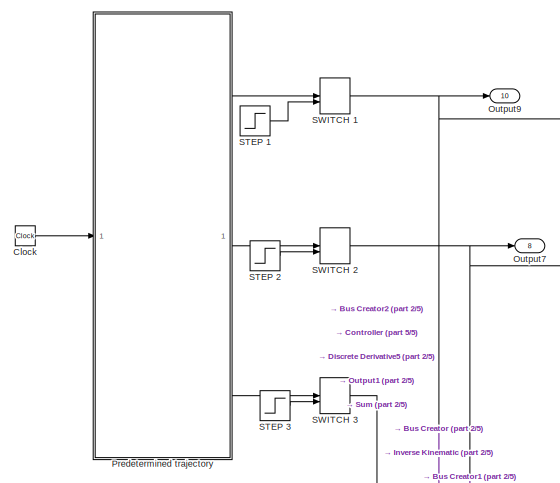
[diagram: root canvas - part 1/5, top center region]
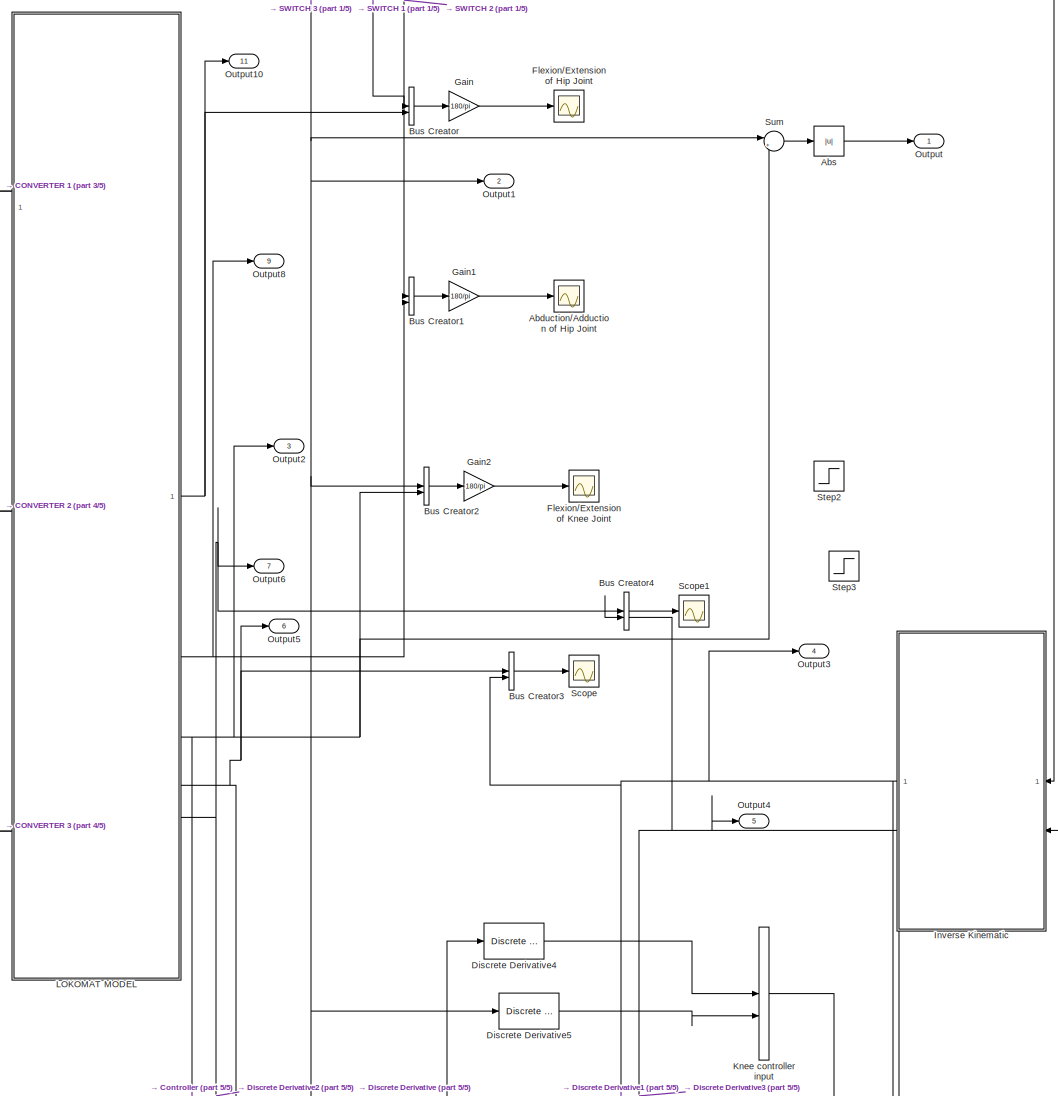
[diagram: root canvas - part 2/5, middle right region]
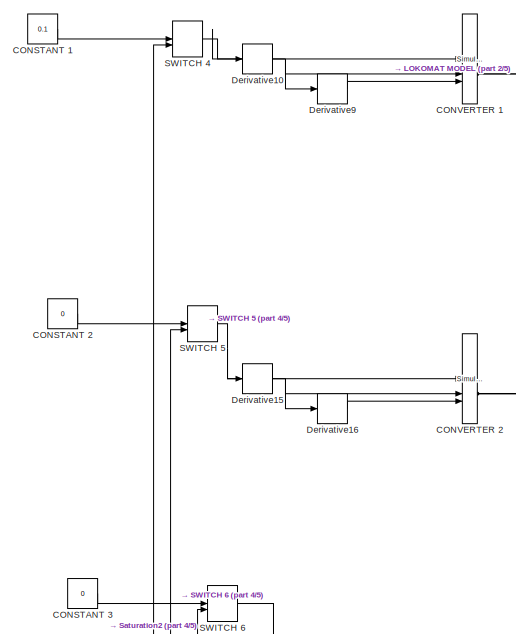
[diagram: root canvas - part 3/5, middle left region]
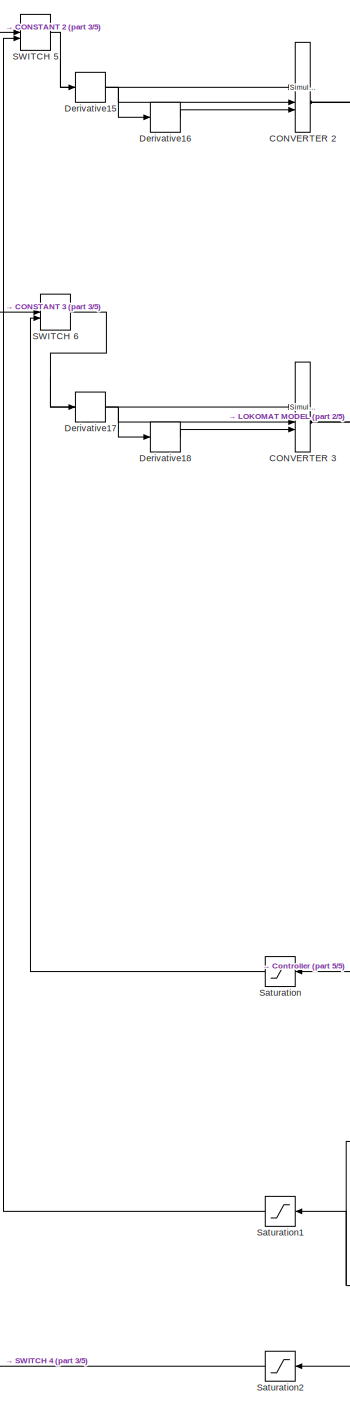
[diagram: root canvas - part 4/5, bottom left region]
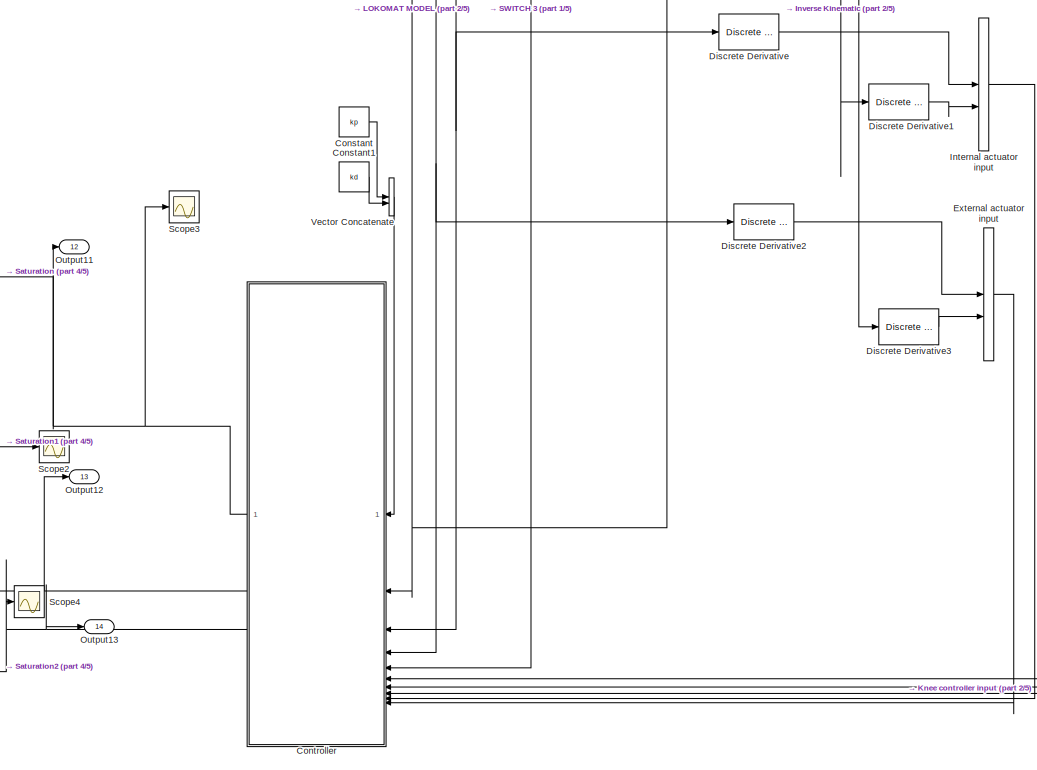
[diagram: root canvas - part 5/5, bottom center region]
MODEL slx_f1c652d692b9
KIND model
CONFIG AbsTol = auto
CONFIG EnableMultiTasking = off
CONFIG FixedStep = 0.001
CONFIG MaxStep = auto
CONFIG MinStep = auto
CONFIG RelTol = 1e-3
CONFIG SampleTimeConstraint = Unconstrained
CONFIG SolverName = FixedStepAuto
CONFIG StartTime = 0.0
CONFIG StopTime = 4
BLOCK [Scope] Abduction//Adduction of Hip Joint
  Floating = off
  NumInputPorts = 1
  ScopeSpecificationString = Simulink.scopes.TimeScopeBlockCfg('CurrentConfiguration', extmgr.ConfigurationSet(extmgr.Configuration('Core','General UI',true),extmgr.Configuration('Core','Source UI',true),extmgr.Configuration('Sources','WiredSimulink',true,'DataLoggingVariableName','ScopeData1'),extmgr.Configuration('Visuals','Time Domain',true,'SerializedDisplays',{struct('MinYLimReal','-5.44733','MaxYLimReal','7.37252','YLab...<+1542ch>
BLOCK [Abs] Abs
  SaturateOnIntegerOverflow = off
BLOCK [BusCreator] Bus Creator
  DisplayOption = bar
  InheritFromInputs = on
  Inputs = 2
BLOCK [BusCreator] Bus Creator1
  DisplayOption = bar
  InheritFromInputs = on
  Inputs = 2
BLOCK [BusCreator] Bus Creator2
  DisplayOption = bar
  InheritFromInputs = on
  Inputs = 2
BLOCK [BusCreator] Bus Creator3
  DisplayOption = bar
  InheritFromInputs = on
  Inputs = 2
BLOCK [BusCreator] Bus Creator4
  DisplayOption = bar
  InheritFromInputs = on
  Inputs = 2
BLOCK [Constant] CONSTANT 1
  Value = 0.1
BLOCK [Constant] CONSTANT 2
  Value = 0
BLOCK [Constant] CONSTANT 3
  Value = 0
BLOCK [Reference] CONVERTER 1  REF=nesl_utility/Simulink-PS
Converter
  NameLocation = top
  SourceBlock = nesl_utility/Simulink-PS\nConverter
  SourceType = Simulink-PS\nConverter
BLOCK [Reference] CONVERTER 2   REF=nesl_utility/Simulink-PS
Converter
  NameLocation = top
  SourceBlock = nesl_utility/Simulink-PS\nConverter
  SourceType = Simulink-PS\nConverter
BLOCK [Reference] CONVERTER 3  REF=nesl_utility/Simulink-PS
Converter
  NameLocation = top
  SourceBlock = nesl_utility/Simulink-PS\nConverter
  SourceType = Simulink-PS\nConverter
BLOCK [Clock] Clock
BLOCK [Constant] Constant
  Value = kp
BLOCK [Constant] Constant1
  Value = kd
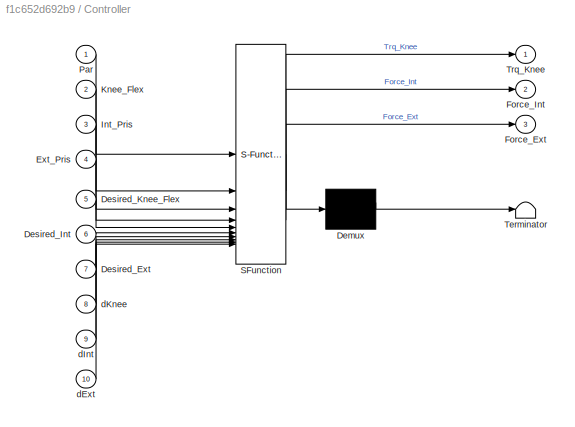
BLOCK [SubSystem] Controller 
  ErrorFcn = Stateflow.Translate.translate
  PermitHierarchicalResolution = ExplicitOnly
  SFBlockType = MATLAB Function
  TreatAsAtomicUnit = on
BLOCK [Demux] Controller / Demux 
  Outputs = 1
BLOCK [S-Function] Controller / SFunction 
  EnableBusSupport = on
  FunctionName = sf_sfun
  PortCounts = [10 4]
  SFcnIsStateOwnerBlock = off
  SFunctionDeploymentMode = off
  Tag = Stateflow S-Function 2
BLOCK [Terminator] Controller / Terminator 
BLOCK [Inport] Controller /Desired_Ext
  Port = 7
BLOCK [Inport] Controller /Desired_Int
  Port = 6
BLOCK [Inport] Controller /Desired_Knee_Flex
  Port = 5
BLOCK [Inport] Controller /Ext_Pris
  Port = 4
BLOCK [Outport] Controller /Force_Ext
  Port = 3
BLOCK [Outport] Controller /Force_Int
  Port = 2
BLOCK [Inport] Controller /Int_Pris
  Port = 3
BLOCK [Inport] Controller /Knee_Flex
  Port = 2
BLOCK [Inport] Controller /Par
BLOCK [Outport] Controller /Trq_Knee
BLOCK [Inport] Controller /dExt
  Port = 10
BLOCK [Inport] Controller /dInt
  Port = 9
BLOCK [Inport] Controller /dKnee
  Port = 8
BLOCK [Derivative] Derivative10
  NameLocation = top
BLOCK [Derivative] Derivative15
  NameLocation = top
BLOCK [Derivative] Derivative16
  NameLocation = top
BLOCK [Derivative] Derivative17
  NameLocation = top
BLOCK [Derivative] Derivative18
  NameLocation = top
BLOCK [Derivative] Derivative9
  NameLocation = top
BLOCK [Reference] Discrete Derivative  REF=simulink/Quick Insert/Discrete/Discrete Derivative
  SourceBlock = simulink/Quick Insert/Discrete/Discrete Derivative
  SourceType = Discrete Derivative
BLOCK [Reference] Discrete Derivative1  REF=simulink/Quick Insert/Discrete/Discrete Derivative
  SourceBlock = simulink/Quick Insert/Discrete/Discrete Derivative
  SourceType = Discrete Derivative
BLOCK [Reference] Discrete Derivative2  REF=simulink/Quick Insert/Discrete/Discrete Derivative
  SourceBlock = simulink/Quick Insert/Discrete/Discrete Derivative
  SourceType = Discrete Derivative
BLOCK [Reference] Discrete Derivative3  REF=simulink/Quick Insert/Discrete/Discrete Derivative
  SourceBlock = simulink/Quick Insert/Discrete/Discrete Derivative
  SourceType = Discrete Derivative
BLOCK [Reference] Discrete Derivative4  REF=simulink/Quick Insert/Discrete/Discrete Derivative
  SourceBlock = simulink/Quick Insert/Discrete/Discrete Derivative
  SourceType = Discrete Derivative
BLOCK [Reference] Discrete Derivative5  REF=simulink/Quick Insert/Discrete/Discrete Derivative
  SourceBlock = simulink/Quick Insert/Discrete/Discrete Derivative
  SourceType = Discrete Derivative
BLOCK [Concatenate] External actuator input
  NameLocation = right
BLOCK [Scope] Flexion//Extension of Hip Joint
  Floating = off
  NumInputPorts = 1
  ScopeSpecificationString = Simulink.scopes.TimeScopeBlockCfg('CurrentConfiguration', extmgr.ConfigurationSet(extmgr.Configuration('Core','General UI',true),extmgr.Configuration('Core','Source UI',true),extmgr.Configuration('Sources','WiredSimulink',true),extmgr.Configuration('Visuals','Time Domain',true,'SerializedDisplays',{struct('MinYLimReal','-23.22608','MaxYLimReal','35.95407','YLabelReal','','MinYLimMag','0.00000','Ma...<+1536ch>
BLOCK [Scope] Flexion//Extension of Knee Joint
  Floating = off
  NumInputPorts = 1
  ScopeSpecificationString = Simulink.scopes.TimeScopeBlockCfg('CurrentConfiguration', extmgr.ConfigurationSet(extmgr.Configuration('Core','General UI',true),extmgr.Configuration('Core','Source UI',true),extmgr.Configuration('Sources','WiredSimulink',true,'DataLoggingVariableName','ScopeData1'),extmgr.Configuration('Visuals','Time Domain',true,'SerializedDisplays',{struct('MinYLimReal','-66.03416','MaxYLimReal','6.33606','YLa...<+1546ch>
BLOCK [Gain] Gain
  Gain = 180/pi
BLOCK [Gain] Gain1
  Gain = 180/pi
BLOCK [Gain] Gain2
  Gain = 180/pi
BLOCK [Concatenate] Internal actuator input
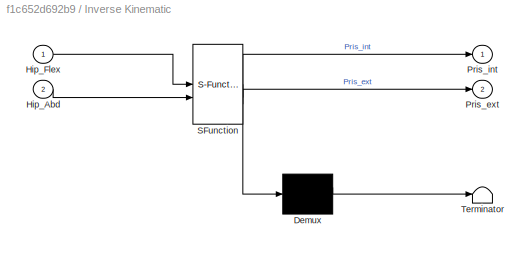
BLOCK [SubSystem] Inverse Kinematic 
  ErrorFcn = Stateflow.Translate.translate
  PermitHierarchicalResolution = ExplicitOnly
  SFBlockType = MATLAB Function
  TreatAsAtomicUnit = on
BLOCK [Demux] Inverse Kinematic / Demux 
  Outputs = 1
BLOCK [S-Function] Inverse Kinematic / SFunction 
  EnableBusSupport = on
  FunctionName = sf_sfun
  PortCounts = [2 3]
  SFcnIsStateOwnerBlock = off
  SFunctionDeploymentMode = off
  Tag = Stateflow S-Function 4
BLOCK [Terminator] Inverse Kinematic / Terminator 
BLOCK [Inport] Inverse Kinematic /Hip_Abd
  Port = 2
BLOCK [Inport] Inverse Kinematic /Hip_Flex
BLOCK [Outport] Inverse Kinematic /Pris_ext
  Port = 2
BLOCK [Outport] Inverse Kinematic /Pris_int
BLOCK [Concatenate] Knee controller input
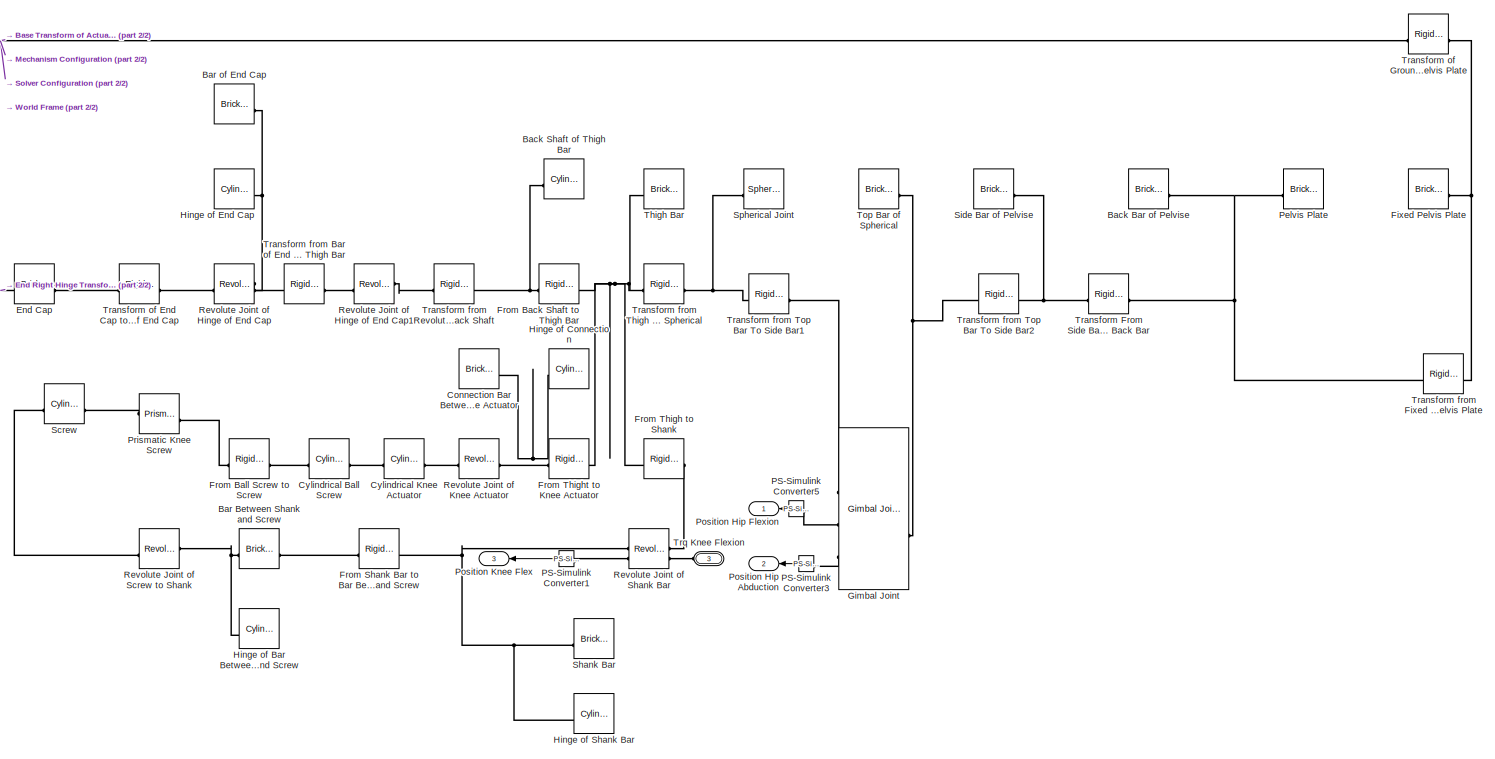
[diagram: LOKOMAT MODEL - part 1/2, right side, full height]
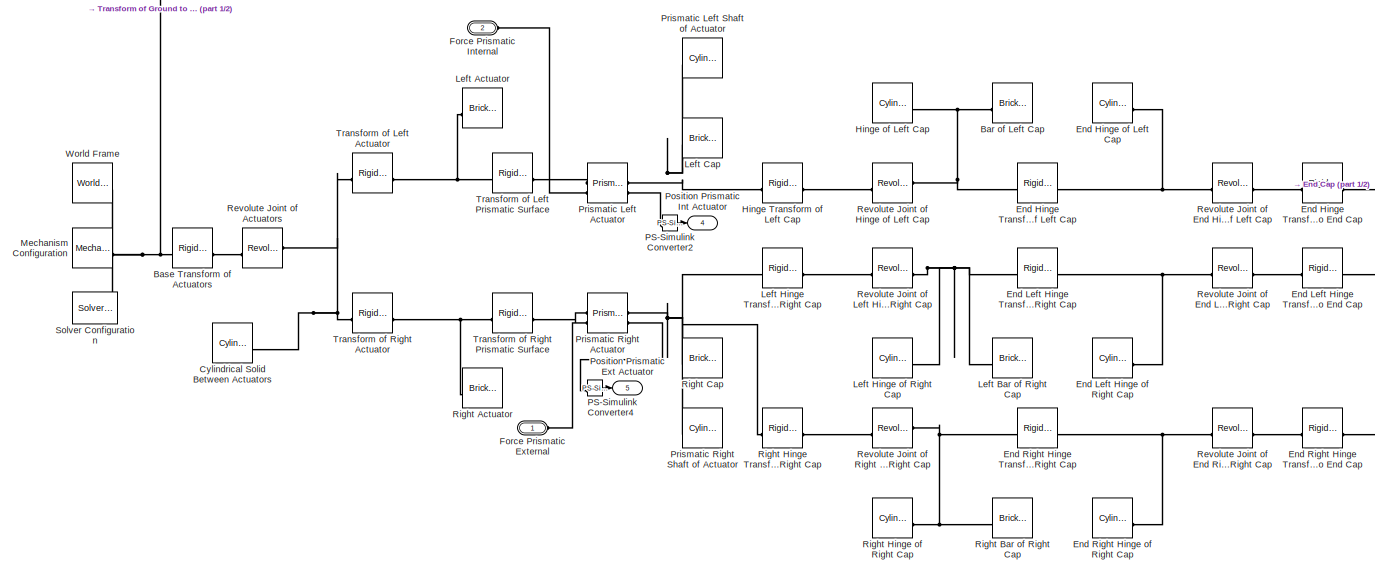
[diagram: LOKOMAT MODEL - part 2/2, middle left region]
BLOCK [SubSystem] LOKOMAT MODEL
BLOCK [Reference] LOKOMAT MODEL/ Fixed Pelvis Plate  REF=sm_lib/Body Elements/Brick Solid
  SourceBlock = sm_lib/Body Elements/Brick Solid
  SourceType = Brick Solid
BLOCK [Reference] LOKOMAT MODEL/Back Bar of Pelvise  REF=sm_lib/Body Elements/Brick Solid
  SourceBlock = sm_lib/Body Elements/Brick Solid
  SourceType = Brick Solid
BLOCK [Reference] LOKOMAT MODEL/Back Shaft of Thigh Bar  REF=sm_lib/Body Elements/Cylindrical Solid
  SourceBlock = sm_lib/Body Elements/Cylindrical Solid
  SourceType = Cylindrical Solid
BLOCK [Reference] LOKOMAT MODEL/Bar Between Shank and Screw  REF=sm_lib/Body Elements/Brick Solid
  SourceBlock = sm_lib/Body Elements/Brick Solid
  SourceType = Brick Solid
BLOCK [Reference] LOKOMAT MODEL/Bar of End Cap  REF=sm_lib/Body Elements/Brick Solid
  SourceBlock = sm_lib/Body Elements/Brick Solid
  SourceType = Brick Solid
BLOCK [Reference] LOKOMAT MODEL/Bar of Left Cap  REF=sm_lib/Body Elements/Brick Solid
  SourceBlock = sm_lib/Body Elements/Brick Solid
  SourceType = Brick Solid
BLOCK [Reference] LOKOMAT MODEL/Base Transform of Actuators  REF=sm_lib/Frames and
Transforms/Rigid
Transform
  SourceBlock = sm_lib/Frames and\nTransforms/Rigid\nTransform
  SourceType = Rigid\nTransform
BLOCK [Reference] LOKOMAT MODEL/Connection Bar Between Thigh and Knee Actuator  REF=sm_lib/Body Elements/Brick Solid
  SourceBlock = sm_lib/Body Elements/Brick Solid
  SourceType = Brick Solid
BLOCK [Reference] LOKOMAT MODEL/Cylindrical Ball Screw  REF=sm_lib/Body Elements/Cylindrical Solid
  SourceBlock = sm_lib/Body Elements/Cylindrical Solid
  SourceType = Cylindrical Solid
BLOCK [Reference] LOKOMAT MODEL/Cylindrical Knee Actuator  REF=sm_lib/Body Elements/Cylindrical Solid
  SourceBlock = sm_lib/Body Elements/Cylindrical Solid
  SourceType = Cylindrical Solid
BLOCK [Reference] LOKOMAT MODEL/Cylindrical Solid Between Actuators  REF=sm_lib/Body Elements/Cylindrical Solid
  SourceBlock = sm_lib/Body Elements/Cylindrical Solid
  SourceType = Cylindrical Solid
BLOCK [Reference] LOKOMAT MODEL/End Cap  REF=sm_lib/Body Elements/Brick Solid
  SourceBlock = sm_lib/Body Elements/Brick Solid
  SourceType = Brick Solid
BLOCK [Reference] LOKOMAT MODEL/End Hinge Transform of Left Cap   REF=sm_lib/Frames and
Transforms/Rigid
Transform
  SourceBlock = sm_lib/Frames and\nTransforms/Rigid\nTransform
  SourceType = Rigid\nTransform
BLOCK [Reference] LOKOMAT MODEL/End Hinge Transform of Left Cap to End Cap  REF=sm_lib/Frames and
Transforms/Rigid
Transform
  SourceBlock = sm_lib/Frames and\nTransforms/Rigid\nTransform
  SourceType = Rigid\nTransform
BLOCK [Reference] LOKOMAT MODEL/End Hinge of Left Cap  REF=sm_lib/Body Elements/Cylindrical Solid
  SourceBlock = sm_lib/Body Elements/Cylindrical Solid
  SourceType = Cylindrical Solid
BLOCK [Reference] LOKOMAT MODEL/End Left Hinge Transform of Right Cap   REF=sm_lib/Frames and
Transforms/Rigid
Transform
  SourceBlock = sm_lib/Frames and\nTransforms/Rigid\nTransform
  SourceType = Rigid\nTransform
BLOCK [Reference] LOKOMAT MODEL/End Left Hinge Transform of Right Cap to End Cap  REF=sm_lib/Frames and
Transforms/Rigid
Transform
  SourceBlock = sm_lib/Frames and\nTransforms/Rigid\nTransform
  SourceType = Rigid\nTransform
BLOCK [Reference] LOKOMAT MODEL/End Left Hinge of Right Cap  REF=sm_lib/Body Elements/Cylindrical Solid
  SourceBlock = sm_lib/Body Elements/Cylindrical Solid
  SourceType = Cylindrical Solid
BLOCK [Reference] LOKOMAT MODEL/End Right Hinge Transform of Right Cap   REF=sm_lib/Frames and
Transforms/Rigid
Transform
  SourceBlock = sm_lib/Frames and\nTransforms/Rigid\nTransform
  SourceType = Rigid\nTransform
BLOCK [Reference] LOKOMAT MODEL/End Right Hinge Transform of Right Cap to End Cap  REF=sm_lib/Frames and
Transforms/Rigid
Transform
  SourceBlock = sm_lib/Frames and\nTransforms/Rigid\nTransform
  SourceType = Rigid\nTransform
BLOCK [Reference] LOKOMAT MODEL/End Right Hinge of Right Cap  REF=sm_lib/Body Elements/Cylindrical Solid
  SourceBlock = sm_lib/Body Elements/Cylindrical Solid
  SourceType = Cylindrical Solid
BLOCK [PMIOPort] LOKOMAT MODEL/Force Prismatic External
  Side = Left
BLOCK [PMIOPort] LOKOMAT MODEL/Force Prismatic Internal
  Port = 2
  Side = Left
BLOCK [Reference] LOKOMAT MODEL/From Back Shaft to Thigh Bar  REF=sm_lib/Frames and
Transforms/Rigid
Transform
  SourceBlock = sm_lib/Frames and\nTransforms/Rigid\nTransform
  SourceType = Rigid\nTransform
BLOCK [Reference] LOKOMAT MODEL/From Ball Screw to Screw  REF=sm_lib/Frames and
Transforms/Rigid
Transform
  SourceBlock = sm_lib/Frames and\nTransforms/Rigid\nTransform
  SourceType = Rigid\nTransform
BLOCK [Reference] LOKOMAT MODEL/From Shank Bar to Bar Between Shank and Screw  REF=sm_lib/Frames and
Transforms/Rigid
Transform
  SourceBlock = sm_lib/Frames and\nTransforms/Rigid\nTransform
  SourceType = Rigid\nTransform
BLOCK [Reference] LOKOMAT MODEL/From Thigh to Shank  REF=sm_lib/Frames and
Transforms/Rigid
Transform
  SourceBlock = sm_lib/Frames and\nTransforms/Rigid\nTransform
  SourceType = Rigid\nTransform
BLOCK [Reference] LOKOMAT MODEL/From Thight to Knee Actuator  REF=sm_lib/Frames and
Transforms/Rigid
Transform
  SourceBlock = sm_lib/Frames and\nTransforms/Rigid\nTransform
  SourceType = Rigid\nTransform
BLOCK [Reference] LOKOMAT MODEL/Gimbal Joint  REF=sm_lib/Joints/Gimbal Joint
  SourceBlock = sm_lib/Joints/Gimbal Joint
  SourceType = Gimbal Joint
BLOCK [Reference] LOKOMAT MODEL/Hinge Transform of Left Cap   REF=sm_lib/Frames and
Transforms/Rigid
Transform
  SourceBlock = sm_lib/Frames and\nTransforms/Rigid\nTransform
  SourceType = Rigid\nTransform
BLOCK [Reference] LOKOMAT MODEL/Hinge of Bar Between Shank and Screw   REF=sm_lib/Body Elements/Cylindrical Solid
  SourceBlock = sm_lib/Body Elements/Cylindrical Solid
  SourceType = Cylindrical Solid
BLOCK [Reference] LOKOMAT MODEL/Hinge of Connection  REF=sm_lib/Body Elements/Cylindrical Solid
  SourceBlock = sm_lib/Body Elements/Cylindrical Solid
  SourceType = Cylindrical Solid
BLOCK [Reference] LOKOMAT MODEL/Hinge of End Cap  REF=sm_lib/Body Elements/Cylindrical Solid
  SourceBlock = sm_lib/Body Elements/Cylindrical Solid
  SourceType = Cylindrical Solid
BLOCK [Reference] LOKOMAT MODEL/Hinge of Left Cap  REF=sm_lib/Body Elements/Cylindrical Solid
  SourceBlock = sm_lib/Body Elements/Cylindrical Solid
  SourceType = Cylindrical Solid
BLOCK [Reference] LOKOMAT MODEL/Hinge of Shank Bar  REF=sm_lib/Body Elements/Cylindrical Solid
  SourceBlock = sm_lib/Body Elements/Cylindrical Solid
  SourceType = Cylindrical Solid
BLOCK [Reference] LOKOMAT MODEL/Left Actuator  REF=sm_lib/Body Elements/Brick Solid
  SourceBlock = sm_lib/Body Elements/Brick Solid
  SourceType = Brick Solid
BLOCK [Reference] LOKOMAT MODEL/Left Bar of Right Cap  REF=sm_lib/Body Elements/Brick Solid
  SourceBlock = sm_lib/Body Elements/Brick Solid
  SourceType = Brick Solid
BLOCK [Reference] LOKOMAT MODEL/Left Cap  REF=sm_lib/Body Elements/Brick Solid
  SourceBlock = sm_lib/Body Elements/Brick Solid
  SourceType = Brick Solid
BLOCK [Reference] LOKOMAT MODEL/Left Hinge Transform of Right Cap   REF=sm_lib/Frames and
Transforms/Rigid
Transform
  SourceBlock = sm_lib/Frames and\nTransforms/Rigid\nTransform
  SourceType = Rigid\nTransform
BLOCK [Reference] LOKOMAT MODEL/Left Hinge of Right Cap  REF=sm_lib/Body Elements/Cylindrical Solid
  SourceBlock = sm_lib/Body Elements/Cylindrical Solid
  SourceType = Cylindrical Solid
BLOCK [Reference] LOKOMAT MODEL/Mechanism Configuration  REF=sm_lib/Utilities/Mechanism
Configuration
  SourceBlock = sm_lib/Utilities/Mechanism\nConfiguration
  SourceType = Mechanism\nConfiguration
BLOCK [Reference] LOKOMAT MODEL/PS-Simulink Converter1  REF=nesl_utility/PS-Simulink
Converter
  SourceBlock = nesl_utility/PS-Simulink\nConverter
  SourceType = PS-Simulink\nConverter
BLOCK [Reference] LOKOMAT MODEL/PS-Simulink Converter2  REF=nesl_utility/PS-Simulink
Converter
  SourceBlock = nesl_utility/PS-Simulink\nConverter
  SourceType = PS-Simulink\nConverter
BLOCK [Reference] LOKOMAT MODEL/PS-Simulink Converter3  REF=nesl_utility/PS-Simulink
Converter
  SourceBlock = nesl_utility/PS-Simulink\nConverter
  SourceType = PS-Simulink\nConverter
BLOCK [Reference] LOKOMAT MODEL/PS-Simulink Converter4  REF=nesl_utility/PS-Simulink
Converter
  SourceBlock = nesl_utility/PS-Simulink\nConverter
  SourceType = PS-Simulink\nConverter
BLOCK [Reference] LOKOMAT MODEL/PS-Simulink Converter5  REF=nesl_utility/PS-Simulink
Converter
  SourceBlock = nesl_utility/PS-Simulink\nConverter
  SourceType = PS-Simulink\nConverter
BLOCK [Reference] LOKOMAT MODEL/Pelvis Plate  REF=sm_lib/Body Elements/Brick Solid
  SourceBlock = sm_lib/Body Elements/Brick Solid
  SourceType = Brick Solid
BLOCK [Outport] LOKOMAT MODEL/Position Hip Abduction
  Port = 2
BLOCK [Outport] LOKOMAT MODEL/Position Hip Flexion
BLOCK [Outport] LOKOMAT MODEL/Position Knee Flex
  Port = 3
BLOCK [Outport] LOKOMAT MODEL/Position Prismatic Ext Actuator
  Port = 5
BLOCK [Outport] LOKOMAT MODEL/Position Prismatic Int Actuator
  Port = 4
BLOCK [Reference] LOKOMAT MODEL/Prismatic Knee Screw   REF=sm_lib/Joints/Prismatic
Joint
  NameLocation = top
  SourceBlock = sm_lib/Joints/Prismatic\nJoint
  SourceType = Prismatic\nJoint
BLOCK [Reference] LOKOMAT MODEL/Prismatic Left Actuator  REF=sm_lib/Joints/Prismatic
Joint
  NameLocation = top
  SourceBlock = sm_lib/Joints/Prismatic\nJoint
  SourceType = Prismatic\nJoint
BLOCK [Reference] LOKOMAT MODEL/Prismatic Left Shaft of Actuator  REF=sm_lib/Body Elements/Cylindrical Solid
  SourceBlock = sm_lib/Body Elements/Cylindrical Solid
  SourceType = Cylindrical Solid
BLOCK [Reference] LOKOMAT MODEL/Prismatic Right Actuator  REF=sm_lib/Joints/Prismatic
Joint
  NameLocation = top
  SourceBlock = sm_lib/Joints/Prismatic\nJoint
  SourceType = Prismatic\nJoint
BLOCK [Reference] LOKOMAT MODEL/Prismatic Right Shaft of Actuator  REF=sm_lib/Body Elements/Cylindrical Solid
  SourceBlock = sm_lib/Body Elements/Cylindrical Solid
  SourceType = Cylindrical Solid
BLOCK [Reference] LOKOMAT MODEL/Revolute Joint of Actuators  REF=sm_lib/Joints/Revolute Joint
  SourceBlock = sm_lib/Joints/Revolute Joint
  SourceType = Revolute Joint
BLOCK [Reference] LOKOMAT MODEL/Revolute Joint of End Hinge of Left Cap   REF=sm_lib/Joints/Revolute Joint
  SourceBlock = sm_lib/Joints/Revolute Joint
  SourceType = Revolute Joint
BLOCK [Reference] LOKOMAT MODEL/Revolute Joint of End Left Hinge of Right Cap   REF=sm_lib/Joints/Revolute Joint
  SourceBlock = sm_lib/Joints/Revolute Joint
  SourceType = Revolute Joint
BLOCK [Reference] LOKOMAT MODEL/Revolute Joint of End Right Hinge of Right Cap   REF=sm_lib/Joints/Revolute Joint
  SourceBlock = sm_lib/Joints/Revolute Joint
  SourceType = Revolute Joint
BLOCK [Reference] LOKOMAT MODEL/Revolute Joint of Hinge of End Cap  REF=sm_lib/Joints/Revolute Joint
  SourceBlock = sm_lib/Joints/Revolute Joint
  SourceType = Revolute Joint
BLOCK [Reference] LOKOMAT MODEL/Revolute Joint of Hinge of End Cap1  REF=sm_lib/Joints/Revolute Joint
  SourceBlock = sm_lib/Joints/Revolute Joint
  SourceType = Revolute Joint
BLOCK [Reference] LOKOMAT MODEL/Revolute Joint of Hinge of Left Cap   REF=sm_lib/Joints/Revolute Joint
  SourceBlock = sm_lib/Joints/Revolute Joint
  SourceType = Revolute Joint
BLOCK [Reference] LOKOMAT MODEL/Revolute Joint of Knee Actuator  REF=sm_lib/Joints/Revolute Joint
  SourceBlock = sm_lib/Joints/Revolute Joint
  SourceType = Revolute Joint
BLOCK [Reference] LOKOMAT MODEL/Revolute Joint of Left Hinge of Right Cap   REF=sm_lib/Joints/Revolute Joint
  SourceBlock = sm_lib/Joints/Revolute Joint
  SourceType = Revolute Joint
BLOCK [Reference] LOKOMAT MODEL/Revolute Joint of Right Hinge of Right Cap   REF=sm_lib/Joints/Revolute Joint
  SourceBlock = sm_lib/Joints/Revolute Joint
  SourceType = Revolute Joint
BLOCK [Reference] LOKOMAT MODEL/Revolute Joint of Screw to Shank  REF=sm_lib/Joints/Revolute Joint
  SourceBlock = sm_lib/Joints/Revolute Joint
  SourceType = Revolute Joint
BLOCK [Reference] LOKOMAT MODEL/Revolute Joint of Shank Bar  REF=sm_lib/Joints/Revolute Joint
  SourceBlock = sm_lib/Joints/Revolute Joint
  SourceType = Revolute Joint
BLOCK [Reference] LOKOMAT MODEL/Right Actuator  REF=sm_lib/Body Elements/Brick Solid
  SourceBlock = sm_lib/Body Elements/Brick Solid
  SourceType = Brick Solid
BLOCK [Reference] LOKOMAT MODEL/Right Bar of Right Cap  REF=sm_lib/Body Elements/Brick Solid
  SourceBlock = sm_lib/Body Elements/Brick Solid
  SourceType = Brick Solid
BLOCK [Reference] LOKOMAT MODEL/Right Cap  REF=sm_lib/Body Elements/Brick Solid
  SourceBlock = sm_lib/Body Elements/Brick Solid
  SourceType = Brick Solid
BLOCK [Reference] LOKOMAT MODEL/Right Hinge Transform of Right Cap   REF=sm_lib/Frames and
Transforms/Rigid
Transform
  SourceBlock = sm_lib/Frames and\nTransforms/Rigid\nTransform
  SourceType = Rigid\nTransform
BLOCK [Reference] LOKOMAT MODEL/Right Hinge of Right Cap  REF=sm_lib/Body Elements/Cylindrical Solid
  SourceBlock = sm_lib/Body Elements/Cylindrical Solid
  SourceType = Cylindrical Solid
BLOCK [Reference] LOKOMAT MODEL/Screw  REF=sm_lib/Body Elements/Cylindrical Solid
  SourceBlock = sm_lib/Body Elements/Cylindrical Solid
  SourceType = Cylindrical Solid
BLOCK [Reference] LOKOMAT MODEL/Shank Bar  REF=sm_lib/Body Elements/Brick Solid
  SourceBlock = sm_lib/Body Elements/Brick Solid
  SourceType = Brick Solid
BLOCK [Reference] LOKOMAT MODEL/Side Bar of Pelvise  REF=sm_lib/Body Elements/Brick Solid
  SourceBlock = sm_lib/Body Elements/Brick Solid
  SourceType = Brick Solid
BLOCK [Reference] LOKOMAT MODEL/Solver Configuration  REF=nesl_utility/Solver
Configuration
  SourceBlock = nesl_utility/Solver\nConfiguration
  SourceType = Solver\nConfiguration
BLOCK [Reference] LOKOMAT MODEL/Spherical Joint  REF=sm_lib/Body Elements/Spherical Solid
  SourceBlock = sm_lib/Body Elements/Spherical Solid
  SourceType = Spherical Solid
BLOCK [Reference] LOKOMAT MODEL/Thigh Bar  REF=sm_lib/Body Elements/Brick Solid
  SourceBlock = sm_lib/Body Elements/Brick Solid
  SourceType = Brick Solid
BLOCK [Reference] LOKOMAT MODEL/Top Bar of Spherical  REF=sm_lib/Body Elements/Brick Solid
  SourceBlock = sm_lib/Body Elements/Brick Solid
  SourceType = Brick Solid
BLOCK [Reference] LOKOMAT MODEL/Transform From Side Bar to Back Bar  REF=sm_lib/Frames and
Transforms/Rigid
Transform
  SourceBlock = sm_lib/Frames and\nTransforms/Rigid\nTransform
  SourceType = Rigid\nTransform
BLOCK [Reference] LOKOMAT MODEL/Transform from Bar of End Cap to Revolute Joint of Thigh Bar  REF=sm_lib/Frames and
Transforms/Rigid
Transform
  NameLocation = top
  SourceBlock = sm_lib/Frames and\nTransforms/Rigid\nTransform
  SourceType = Rigid\nTransform
BLOCK [Reference] LOKOMAT MODEL/Transform from Fixed Plate to Pelvis Plate  REF=sm_lib/Frames and
Transforms/Rigid
Transform
  SourceBlock = sm_lib/Frames and\nTransforms/Rigid\nTransform
  SourceType = Rigid\nTransform
BLOCK [Reference] LOKOMAT MODEL/Transform from Revolute Joint of Back Shaft to Back Shaft  REF=sm_lib/Frames and
Transforms/Rigid
Transform
  NameLocation = top
  SourceBlock = sm_lib/Frames and\nTransforms/Rigid\nTransform
  SourceType = Rigid\nTransform
BLOCK [Reference] LOKOMAT MODEL/Transform from Thigh Bar to Spherical  REF=sm_lib/Frames and
Transforms/Rigid
Transform
  SourceBlock = sm_lib/Frames and\nTransforms/Rigid\nTransform
  SourceType = Rigid\nTransform
BLOCK [Reference] LOKOMAT MODEL/Transform from Top Bar To Side Bar1  REF=sm_lib/Frames and
Transforms/Rigid
Transform
  SourceBlock = sm_lib/Frames and\nTransforms/Rigid\nTransform
  SourceType = Rigid\nTransform
BLOCK [Reference] LOKOMAT MODEL/Transform from Top Bar To Side Bar2  REF=sm_lib/Frames and
Transforms/Rigid
Transform
  SourceBlock = sm_lib/Frames and\nTransforms/Rigid\nTransform
  SourceType = Rigid\nTransform
BLOCK [Reference] LOKOMAT MODEL/Transform of End Cap to Hinge of End Cap   REF=sm_lib/Frames and
Transforms/Rigid
Transform
  SourceBlock = sm_lib/Frames and\nTransforms/Rigid\nTransform
  SourceType = Rigid\nTransform
BLOCK [Reference] LOKOMAT MODEL/Transform of Ground to Fixed Pelvis Plate  REF=sm_lib/Frames and
Transforms/Rigid
Transform
  SourceBlock = sm_lib/Frames and\nTransforms/Rigid\nTransform
  SourceType = Rigid\nTransform
BLOCK [Reference] LOKOMAT MODEL/Transform of Left Actuator  REF=sm_lib/Frames and
Transforms/Rigid
Transform
  SourceBlock = sm_lib/Frames and\nTransforms/Rigid\nTransform
  SourceType = Rigid\nTransform
BLOCK [Reference] LOKOMAT MODEL/Transform of Left Prismatic Surface  REF=sm_lib/Frames and
Transforms/Rigid
Transform
  SourceBlock = sm_lib/Frames and\nTransforms/Rigid\nTransform
  SourceType = Rigid\nTransform
BLOCK [Reference] LOKOMAT MODEL/Transform of Right Actuator  REF=sm_lib/Frames and
Transforms/Rigid
Transform
  SourceBlock = sm_lib/Frames and\nTransforms/Rigid\nTransform
  SourceType = Rigid\nTransform
BLOCK [Reference] LOKOMAT MODEL/Transform of Right Prismatic Surface  REF=sm_lib/Frames and
Transforms/Rigid
Transform
  SourceBlock = sm_lib/Frames and\nTransforms/Rigid\nTransform
  SourceType = Rigid\nTransform
BLOCK [PMIOPort] LOKOMAT MODEL/Trq Knee Flexion
  Port = 3
  Side = Left
BLOCK [Reference] LOKOMAT MODEL/World Frame  REF=sm_lib/Frames and
Transforms/World Frame
  SourceBlock = sm_lib/Frames and\nTransforms/World Frame
  SourceType = World Frame
BLOCK [Outport] Output
BLOCK [Outport] Output1
  Port = 2
BLOCK [Outport] Output10
  Port = 11
BLOCK [Outport] Output11
  Port = 12
BLOCK [Outport] Output12
  Port = 13
BLOCK [Outport] Output13
  Port = 14
BLOCK [Outport] Output2
  Port = 3
BLOCK [Outport] Output3
  Port = 4
BLOCK [Outport] Output4
  Port = 5
BLOCK [Outport] Output5
  Port = 6
BLOCK [Outport] Output6
  Port = 7
BLOCK [Outport] Output7
  Port = 8
BLOCK [Outport] Output8
  Port = 9
BLOCK [Outport] Output9
  Port = 10
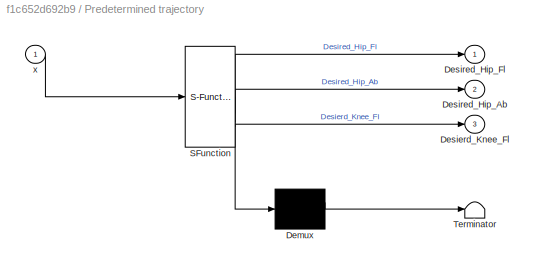
BLOCK [SubSystem] Predetermined trajectory
  ErrorFcn = Stateflow.Translate.translate
  PermitHierarchicalResolution = ExplicitOnly
  SFBlockType = MATLAB Function
  TreatAsAtomicUnit = on
BLOCK [Demux] Predetermined trajectory/ Demux 
  Outputs = 1
BLOCK [S-Function] Predetermined trajectory/ SFunction 
  EnableBusSupport = on
  FunctionName = sf_sfun
  PortCounts = [1 4]
  SFcnIsStateOwnerBlock = off
  SFunctionDeploymentMode = off
  Tag = Stateflow S-Function 1
BLOCK [Terminator] Predetermined trajectory/ Terminator 
BLOCK [Outport] Predetermined trajectory/Desierd_Knee_Fl
  Port = 3
BLOCK [Outport] Predetermined trajectory/Desired_Hip_Ab
  Port = 2
BLOCK [Outport] Predetermined trajectory/Desired_Hip_Fl
BLOCK [Inport] Predetermined trajectory/x
BLOCK [Step] STEP 1
  After = (0.5/180)*3.14159*0
  SampleTime = 0
  Time = 2
BLOCK [Step] STEP 2
  After = (0.5/180)*3.14159*0
  SampleTime = 0
  Time = 2
BLOCK [Step] STEP 3
  After = -(1/180)*3.14159*0
  SampleTime = 0
  Time = 2
BLOCK [ManualSwitch] SWITCH 1
BLOCK [ManualSwitch] SWITCH 2
BLOCK [ManualSwitch] SWITCH 3
  CurrentSetting = 0
BLOCK [ManualSwitch] SWITCH 4
  CurrentSetting = 0
BLOCK [ManualSwitch] SWITCH 5
  CurrentSetting = 0
BLOCK [ManualSwitch] SWITCH 6
BLOCK [Saturate] Saturation
  LowerLimit = -20
  UpperLimit = 20
BLOCK [Saturate] Saturation1
  LowerLimit = -500
  UpperLimit = 500
BLOCK [Saturate] Saturation2
  LowerLimit = -500
  UpperLimit = 500
BLOCK [Scope] Scope
  Floating = off
  NumInputPorts = 1
  ScopeSpecificationString = Simulink.scopes.TimeScopeBlockCfg('CurrentConfiguration', extmgr.ConfigurationSet(extmgr.Configuration('Core','General UI',true),extmgr.Configuration('Core','Source UI',true),extmgr.Configuration('Sources','WiredSimulink',true,'DataLoggingVariableName','ScopeData1'),extmgr.Configuration('Visuals','Time Domain',true,'SerializedDisplays',{struct('MinYLimReal','-0.02205','MaxYLimReal','0.32396','YLab...<+1487ch>
BLOCK [Scope] Scope1
  Floating = off
  NumInputPorts = 1
  ScopeSpecificationString = Simulink.scopes.TimeScopeBlockCfg('CurrentConfiguration', extmgr.ConfigurationSet(extmgr.Configuration('Core','General UI',true),extmgr.Configuration('Core','Source UI',true),extmgr.Configuration('Sources','WiredSimulink',true,'DataLoggingVariableName','ScopeData2'),extmgr.Configuration('Visuals','Time Domain',true,'SerializedDisplays',{struct('MinYLimReal','0.05186','MaxYLimReal','0.39632','YLabe...<+1480ch>
BLOCK [Scope] Scope2
  Floating = off
  NumInputPorts = 1
  ScopeSpecificationString = Simulink.scopes.TimeScopeBlockCfg('CurrentConfiguration', extmgr.ConfigurationSet(extmgr.Configuration('Core','General UI',true),extmgr.Configuration('Core','Source UI',true),extmgr.Configuration('Sources','WiredSimulink',true,'DataLoggingVariableName','ScopeData1'),extmgr.Configuration('Visuals','Time Domain',true,'SerializedDisplays',{struct('MinYLimReal','-7160.0829','MaxYLimReal','4404.76046',...<+1417ch>
BLOCK [Scope] Scope3
  Floating = off
  NumInputPorts = 1
  ScopeSpecificationString = Simulink.scopes.TimeScopeBlockCfg('CurrentConfiguration', extmgr.ConfigurationSet(extmgr.Configuration('Core','General UI',true),extmgr.Configuration('Core','Source UI',true),extmgr.Configuration('Sources','WiredSimulink',true,'DataLoggingVariableName','ScopeData1'),extmgr.Configuration('Visuals','Time Domain',true,'SerializedDisplays',{struct('MinYLimReal','-692.70897','MaxYLimReal','107.82245','...<+1467ch>
BLOCK [Scope] Scope4
  Floating = off
  NumInputPorts = 1
  ScopeSpecificationString = Simulink.scopes.TimeScopeBlockCfg('CurrentConfiguration', extmgr.ConfigurationSet(extmgr.Configuration('Core','General UI',true),extmgr.Configuration('Core','Source UI',true),extmgr.Configuration('Sources','WiredSimulink',true,'DataLoggingVariableName','ScopeData2'),extmgr.Configuration('Visuals','Time Domain',true,'SerializedDisplays',{struct('MinYLimReal','-1765.60985','MaxYLimReal','1969.10447'...<+1477ch>
BLOCK [Step] Step2
  After = 0.01
  SampleTime = 0
BLOCK [Step] Step3
  After = 0.01
  SampleTime = 0
BLOCK [Sum] Sum
  Inputs = |+-
BLOCK [Concatenate] Vector Concatenate
LINE Abs:1 -> Output:1
LINE Bus Creator1:1 -> Gain1:1
LINE Bus Creator2:1 -> Gain2:1
LINE Bus Creator3:1 -> Scope:1
LINE Bus Creator4:1 -> Scope1:1
LINE Bus Creator:1 -> Gain:1
LINE CONSTANT 1:1 -> SWITCH 4:1
LINE CONSTANT 2:1 -> SWITCH 5:1
LINE CONSTANT 3:1 -> SWITCH 6:1
LINE Clock:1 -> Predetermined trajectory:1
LINE Constant1:1 -> Vector Concatenate:2
LINE Constant:1 -> Vector Concatenate:1
NET Controller :1 -> Output11:1, Saturation:1, Scope3:1
NET Controller :2 -> Output12:1, Saturation1:1, Scope2:1
NET Controller :3 -> Output13:1, Saturation2:1, Scope4:1
NET Derivative10:1 -> CONVERTER 1:2, Derivative9:1
NET Derivative15:1 -> CONVERTER 2 :2, Derivative16:1
LINE Derivative16:1 -> CONVERTER 2 :3
NET Derivative17:1 -> CONVERTER 3:2, Derivative18:1
LINE Derivative18:1 -> CONVERTER 3:3
LINE Derivative9:1 -> CONVERTER 1:3
LINE Discrete Derivative1:1 -> Internal actuator input:2
LINE Discrete Derivative2:1 -> External actuator input:1
LINE Discrete Derivative3:1 -> External actuator input:2
LINE Discrete Derivative4:1 -> Knee controller input:1
LINE Discrete Derivative5:1 -> Knee controller input:2
LINE Discrete Derivative:1 -> Internal actuator input:1
LINE External actuator input:1 -> Controller :10
LINE Gain1:1 -> Abduction//Adduction of Hip Joint:1
LINE Gain2:1 -> Flexion//Extension of Knee Joint:1
LINE Gain:1 -> Flexion//Extension of Hip Joint:1
LINE Internal actuator input:1 -> Controller :9
NET Inverse Kinematic :1 -> Bus Creator3:2, Controller :6, Discrete Derivative1:1, Output3:1
NET Inverse Kinematic :2 -> Bus Creator4:2, Controller :7, Discrete Derivative3:1, Output4:1
LINE Knee controller input:1 -> Controller :8
LINE LOKOMAT MODEL/PS-Simulink Converter1:1 -> LOKOMAT MODEL/Position Knee Flex:1
LINE LOKOMAT MODEL/PS-Simulink Converter2:1 -> LOKOMAT MODEL/Position Prismatic Int Actuator:1
LINE LOKOMAT MODEL/PS-Simulink Converter3:1 -> LOKOMAT MODEL/Position Hip Abduction:1
LINE LOKOMAT MODEL/PS-Simulink Converter4:1 -> LOKOMAT MODEL/Position Prismatic Ext Actuator:1
LINE LOKOMAT MODEL/PS-Simulink Converter5:1 -> LOKOMAT MODEL/Position Hip Flexion:1
NET LOKOMAT MODEL:1 -> Bus Creator:2, Output10:1
NET LOKOMAT MODEL:2 -> Bus Creator1:2, Output8:1
NET LOKOMAT MODEL:3 -> Bus Creator2:2, Controller :2, Discrete Derivative4:1, Output2:1, Sum:2
NET LOKOMAT MODEL:4 -> Bus Creator3:1, Controller :3, Discrete Derivative:1, Output5:1
NET LOKOMAT MODEL:5 -> Bus Creator4:1, Controller :4, Discrete Derivative2:1, Output6:1
LINE Predetermined trajectory:1 -> SWITCH 1:1
LINE Predetermined trajectory:2 -> SWITCH 2:1
LINE Predetermined trajectory:3 -> SWITCH 3:1
LINE STEP 1:1 -> SWITCH 1:2
LINE STEP 2:1 -> SWITCH 2:2
LINE STEP 3:1 -> SWITCH 3:2
NET SWITCH 1:1 -> Bus Creator:1, Inverse Kinematic :2, Output9:1
NET SWITCH 2:1 -> Bus Creator1:1, Inverse Kinematic :1, Output7:1
NET SWITCH 3:1 -> Bus Creator2:1, Controller :5, Discrete Derivative5:1, Output1:1, Sum:1
NET SWITCH 4:1 -> CONVERTER 1:1, Derivative10:1
NET SWITCH 5:1 -> CONVERTER 2 :1, Derivative15:1
NET SWITCH 6:1 -> CONVERTER 3:1, Derivative17:1
LINE Saturation1:1 -> SWITCH 5:2
LINE Saturation2:1 -> SWITCH 4:2
LINE Saturation:1 -> SWITCH 6:2
LINE Sum:1 -> Abs:1
LINE Vector Concatenate:1 -> Controller :1
PLINE CONVERTER 1:RConn1 -- LOKOMAT MODEL:LConn1
PLINE CONVERTER 2 :RConn1 -- LOKOMAT MODEL:LConn2
PLINE CONVERTER 3:RConn1 -- LOKOMAT MODEL:LConn3
PNET net1: LOKOMAT MODEL/ Fixed Pelvis Plate:RConn1 -- LOKOMAT MODEL/Transform from Fixed Plate to Pelvis Plate:LConn1 -- LOKOMAT MODEL/Transform of Ground to Fixed Pelvis Plate:RConn1
PNET net2: LOKOMAT MODEL/Back Bar of Pelvise:RConn1 -- LOKOMAT MODEL/Pelvis Plate:LConn1 -- LOKOMAT MODEL/Transform From Side Bar to Back Bar:RConn1 -- LOKOMAT MODEL/Transform from Fixed Plate to Pelvis Plate:RConn1
PNET net3: LOKOMAT MODEL/Back Shaft of Thigh Bar:LConn1 -- LOKOMAT MODEL/From Back Shaft to Thigh Bar:LConn1 -- LOKOMAT MODEL/Transform from Revolute Joint of Back Shaft to Back Shaft:RConn1
PLINE LOKOMAT MODEL/Bar Between Shank and Screw:LConn1 -- LOKOMAT MODEL/From Shank Bar to Bar Between Shank and Screw:RConn1
PNET net4: LOKOMAT MODEL/Bar Between Shank and Screw:RConn1 -- LOKOMAT MODEL/Hinge of Bar Between Shank and Screw :RConn1 -- LOKOMAT MODEL/Revolute Joint of Screw to Shank:RConn1
PNET net5: LOKOMAT MODEL/Bar of End Cap:LConn1 -- LOKOMAT MODEL/Hinge of End Cap:RConn1 -- LOKOMAT MODEL/Revolute Joint of Hinge of End Cap:RConn1 -- LOKOMAT MODEL/Transform from Bar of End Cap to Revolute Joint of Thigh Bar:LConn1
PNET net6: LOKOMAT MODEL/Bar of Left Cap:LConn1 -- LOKOMAT MODEL/End Hinge Transform of Left Cap :LConn1 -- LOKOMAT MODEL/Hinge of Left Cap:RConn1 -- LOKOMAT MODEL/Revolute Joint of Hinge of Left Cap :RConn1
PNET net7: LOKOMAT MODEL/Base Transform of Actuators:LConn1 -- LOKOMAT MODEL/Mechanism Configuration:RConn1 -- LOKOMAT MODEL/Solver Configuration:RConn1 -- LOKOMAT MODEL/Transform of Ground to Fixed Pelvis Plate:LConn1 -- LOKOMAT MODEL/World Frame:RConn1
PLINE LOKOMAT MODEL/Base Transform of Actuators:RConn1 -- LOKOMAT MODEL/Revolute Joint of Actuators:LConn1
PNET net8: LOKOMAT MODEL/Connection Bar Between Thigh and Knee Actuator:LConn1 -- LOKOMAT MODEL/From Thight to Knee Actuator:RConn1 -- LOKOMAT MODEL/Hinge of Connection:RConn1 -- LOKOMAT MODEL/Revolute Joint of Knee Actuator:LConn1
PLINE LOKOMAT MODEL/Cylindrical Ball Screw:LConn1 -- LOKOMAT MODEL/Cylindrical Knee Actuator:RConn1
PLINE LOKOMAT MODEL/Cylindrical Ball Screw:RConn1 -- LOKOMAT MODEL/From Ball Screw to Screw:LConn1
PLINE LOKOMAT MODEL/Cylindrical Knee Actuator:LConn1 -- LOKOMAT MODEL/Revolute Joint of Knee Actuator:RConn1
PNET net9: LOKOMAT MODEL/Cylindrical Solid Between Actuators:RConn1 -- LOKOMAT MODEL/Revolute Joint of Actuators:RConn1 -- LOKOMAT MODEL/Transform of Left Actuator:LConn1 -- LOKOMAT MODEL/Transform of Right Actuator:LConn1
PNET net10: LOKOMAT MODEL/End Cap:LConn1 -- LOKOMAT MODEL/End Hinge Transform of Left Cap to End Cap:RConn1 -- LOKOMAT MODEL/End Left Hinge Transform of Right Cap to End Cap:RConn1 -- LOKOMAT MODEL/End Right Hinge Transform of Right Cap to End Cap:RConn1
PLINE LOKOMAT MODEL/End Cap:RConn1 -- LOKOMAT MODEL/Transform of End Cap to Hinge of End Cap :LConn1
PNET net11: LOKOMAT MODEL/End Hinge Transform of Left Cap :RConn1 -- LOKOMAT MODEL/End Hinge of Left Cap:RConn1 -- LOKOMAT MODEL/Revolute Joint of End Hinge of Left Cap :LConn1
PLINE LOKOMAT MODEL/End Hinge Transform of Left Cap to End Cap:LConn1 -- LOKOMAT MODEL/Revolute Joint of End Hinge of Left Cap :RConn1
PNET net12: LOKOMAT MODEL/End Left Hinge Transform of Right Cap :LConn1 -- LOKOMAT MODEL/Left Bar of Right Cap:LConn1 -- LOKOMAT MODEL/Left Hinge of Right Cap:RConn1 -- LOKOMAT MODEL/Revolute Joint of Left Hinge of Right Cap :RConn1
PNET net13: LOKOMAT MODEL/End Left Hinge Transform of Right Cap :RConn1 -- LOKOMAT MODEL/End Left Hinge of Right Cap:RConn1 -- LOKOMAT MODEL/Revolute Joint of End Left Hinge of Right Cap :LConn1
PLINE LOKOMAT MODEL/End Left Hinge Transform of Right Cap to End Cap:LConn1 -- LOKOMAT MODEL/Revolute Joint of End Left Hinge of Right Cap :RConn1
PNET net14: LOKOMAT MODEL/End Right Hinge Transform of Right Cap :LConn1 -- LOKOMAT MODEL/Revolute Joint of Right Hinge of Right Cap :RConn1 -- LOKOMAT MODEL/Right Bar of Right Cap:LConn1 -- LOKOMAT MODEL/Right Hinge of Right Cap:RConn1
PNET net15: LOKOMAT MODEL/End Right Hinge Transform of Right Cap :RConn1 -- LOKOMAT MODEL/End Right Hinge of Right Cap:RConn1 -- LOKOMAT MODEL/Revolute Joint of End Right Hinge of Right Cap :LConn1
PLINE LOKOMAT MODEL/End Right Hinge Transform of Right Cap to End Cap:LConn1 -- LOKOMAT MODEL/Revolute Joint of End Right Hinge of Right Cap :RConn1
PLINE LOKOMAT MODEL/Force Prismatic External:RConn1 -- LOKOMAT MODEL/Prismatic Right Actuator:LConn2
PLINE LOKOMAT MODEL/Force Prismatic Internal:RConn1 -- LOKOMAT MODEL/Prismatic Left Actuator:LConn2
PNET net16: LOKOMAT MODEL/From Back Shaft to Thigh Bar:RConn1 -- LOKOMAT MODEL/From Thigh to Shank:LConn1 -- LOKOMAT MODEL/From Thight to Knee Actuator:LConn1 -- LOKOMAT MODEL/Thigh Bar:LConn1 -- LOKOMAT MODEL/Transform from Thigh Bar to Spherical:LConn1
PLINE LOKOMAT MODEL/From Ball Screw to Screw:RConn1 -- LOKOMAT MODEL/Prismatic Knee Screw :LConn1
PNET net17: LOKOMAT MODEL/From Shank Bar to Bar Between Shank and Screw:LConn1 -- LOKOMAT MODEL/Hinge of Shank Bar:RConn1 -- LOKOMAT MODEL/Revolute Joint of Shank Bar:RConn1 -- LOKOMAT MODEL/Shank Bar:LConn1
PLINE LOKOMAT MODEL/From Thigh to Shank:RConn1 -- LOKOMAT MODEL/Revolute Joint of Shank Bar:LConn1
PNET net18: LOKOMAT MODEL/Gimbal Joint:LConn1 -- LOKOMAT MODEL/Top Bar of Spherical:LConn1 -- LOKOMAT MODEL/Transform from Top Bar To Side Bar2:RConn1
PLINE LOKOMAT MODEL/Gimbal Joint:RConn1 -- LOKOMAT MODEL/Transform from Top Bar To Side Bar1:LConn1
PLINE LOKOMAT MODEL/Gimbal Joint:RConn2 -- LOKOMAT MODEL/PS-Simulink Converter5:LConn1
PLINE LOKOMAT MODEL/Gimbal Joint:RConn3 -- LOKOMAT MODEL/PS-Simulink Converter3:LConn1
PNET net19: LOKOMAT MODEL/Hinge Transform of Left Cap :LConn1 -- LOKOMAT MODEL/Left Cap:LConn1 -- LOKOMAT MODEL/Prismatic Left Actuator:RConn1 -- LOKOMAT MODEL/Prismatic Left Shaft of Actuator:LConn1
PLINE LOKOMAT MODEL/Hinge Transform of Left Cap :RConn1 -- LOKOMAT MODEL/Revolute Joint of Hinge of Left Cap :LConn1
PNET net20: LOKOMAT MODEL/Left Actuator:LConn1 -- LOKOMAT MODEL/Transform of Left Actuator:RConn1 -- LOKOMAT MODEL/Transform of Left Prismatic Surface:LConn1
PNET net21: LOKOMAT MODEL/Left Hinge Transform of Right Cap :LConn1 -- LOKOMAT MODEL/Prismatic Right Actuator:RConn1 -- LOKOMAT MODEL/Prismatic Right Shaft of Actuator:LConn1 -- LOKOMAT MODEL/Right Cap:LConn1 -- LOKOMAT MODEL/Right Hinge Transform of Right Cap :LConn1
PLINE LOKOMAT MODEL/Left Hinge Transform of Right Cap :RConn1 -- LOKOMAT MODEL/Revolute Joint of Left Hinge of Right Cap :LConn1
PLINE LOKOMAT MODEL/PS-Simulink Converter1:LConn1 -- LOKOMAT MODEL/Revolute Joint of Shank Bar:RConn2
PLINE LOKOMAT MODEL/PS-Simulink Converter2:LConn1 -- LOKOMAT MODEL/Prismatic Left Actuator:RConn2
PLINE LOKOMAT MODEL/PS-Simulink Converter4:LConn1 -- LOKOMAT MODEL/Prismatic Right Actuator:RConn2
PLINE LOKOMAT MODEL/Prismatic Knee Screw :RConn1 -- LOKOMAT MODEL/Screw:LConn1
PLINE LOKOMAT MODEL/Prismatic Left Actuator:LConn1 -- LOKOMAT MODEL/Transform of Left Prismatic Surface:RConn1
PLINE LOKOMAT MODEL/Prismatic Right Actuator:LConn1 -- LOKOMAT MODEL/Transform of Right Prismatic Surface:RConn1
PLINE LOKOMAT MODEL/Revolute Joint of Hinge of End Cap1:LConn1 -- LOKOMAT MODEL/Transform from Bar of End Cap to Revolute Joint of Thigh Bar:RConn1
PLINE LOKOMAT MODEL/Revolute Joint of Hinge of End Cap1:RConn1 -- LOKOMAT MODEL/Transform from Revolute Joint of Back Shaft to Back Shaft:LConn1
PLINE LOKOMAT MODEL/Revolute Joint of Hinge of End Cap:LConn1 -- LOKOMAT MODEL/Transform of End Cap to Hinge of End Cap :RConn1
PLINE LOKOMAT MODEL/Revolute Joint of Right Hinge of Right Cap :LConn1 -- LOKOMAT MODEL/Right Hinge Transform of Right Cap :RConn1
PLINE LOKOMAT MODEL/Revolute Joint of Screw to Shank:LConn1 -- LOKOMAT MODEL/Screw:RConn1
PLINE LOKOMAT MODEL/Revolute Joint of Shank Bar:LConn2 -- LOKOMAT MODEL/Trq Knee Flexion:RConn1
PNET net22: LOKOMAT MODEL/Right Actuator:LConn1 -- LOKOMAT MODEL/Transform of Right Actuator:RConn1 -- LOKOMAT MODEL/Transform of Right Prismatic Surface:LConn1
PNET net23: LOKOMAT MODEL/Side Bar of Pelvise:LConn1 -- LOKOMAT MODEL/Transform From Side Bar to Back Bar:LConn1 -- LOKOMAT MODEL/Transform from Top Bar To Side Bar2:LConn1
PNET net24: LOKOMAT MODEL/Spherical Joint:RConn1 -- LOKOMAT MODEL/Transform from Thigh Bar to Spherical:RConn1 -- LOKOMAT MODEL/Transform from Top Bar To Side Bar1:RConn1
note: NET lines group one-source signal fan-out (src -> all destinations, sorted); 1:1 wires keep LINE; PNET lines group multi-terminal physical nets as a canonical sorted terminal list (undirected conserving connections); 2-terminal nets keep the pairwise PLINE form
CHART Predetermined trajectory states=1 transitions=1
  STATE_LABEL 'eML_blk_kernel()'
  STATE_LABEL 'SCRIPT:\n\nfunction [Desired_Hip_Fl,Desired_Hip_Ab,Desierd_Knee_Fl] = desired_trajectory(x)\nx=x-floor(x);\n a0 =     -0.3548; \n       a1 =       0.02918;  \n       b1 =     0.3386;  \n       a2 =      0.2412;  \n       b2 =      -0.141;  \n       a3 =     0.001263;  \n       b3 =     -0.07783;  \n       a4 =     0.01228;  \n       b4 =    -0.008624;  \n       a5 =   0.006195;  \n       b5 =      -0.01385;  \n ...<+1176ch>'
CHART Controller  states=1 transitions=1
  STATE_LABEL 'eML_blk_kernel()'
  STATE_LABEL 'SCRIPT:\nfunction [Trq_Knee,Force_Int,Force_Ext] = fcn(Par, Knee_Flex,Int_Pris,Ext_Pris,Desired_Knee_Flex,Desired_Int, Desired_Ext, dKnee, dInt, dExt)\n%% Knee Controller\n% The amount of desired torque should be determinded by knowing the amount\n% of desired and actual trajectory of knee.\n\n%question regarding kp increase \n%kv = 0.5\n%kp1 = 20\n%kp2 = 700\n%kp3 = 148300\n%kp4 = 148500\n%kv2 = \nkp =Par(1);...<+1044ch>'
CHART Inverse Kinematic  states=1 transitions=1
  STATE_LABEL 'eML_blk_kernel()'
  STATE_LABEL 'SCRIPT:\n\nfunction [Pris_int,Pris_ext] = fcn(Hip_Flex,Hip_Abd)\n\n%% Data of Pelvis Plate\nRR=eye(3);\nF=.2; % frontal distance between fixed plate and pelvis plate\nT=0; % transverse distance between fixed plate and pelvis plate\nL=0; % lateral distance between fixed plate and pelvis plate\n%%data of thigh bar with back shaft to revolute joint\n\nm=.34; % distance of center of back shaft of thigh with hip ...<+1588ch>'
CHART  states=0 transitions=0
CHART  states=0 transitions=0
CHART  states=0 transitions=0
